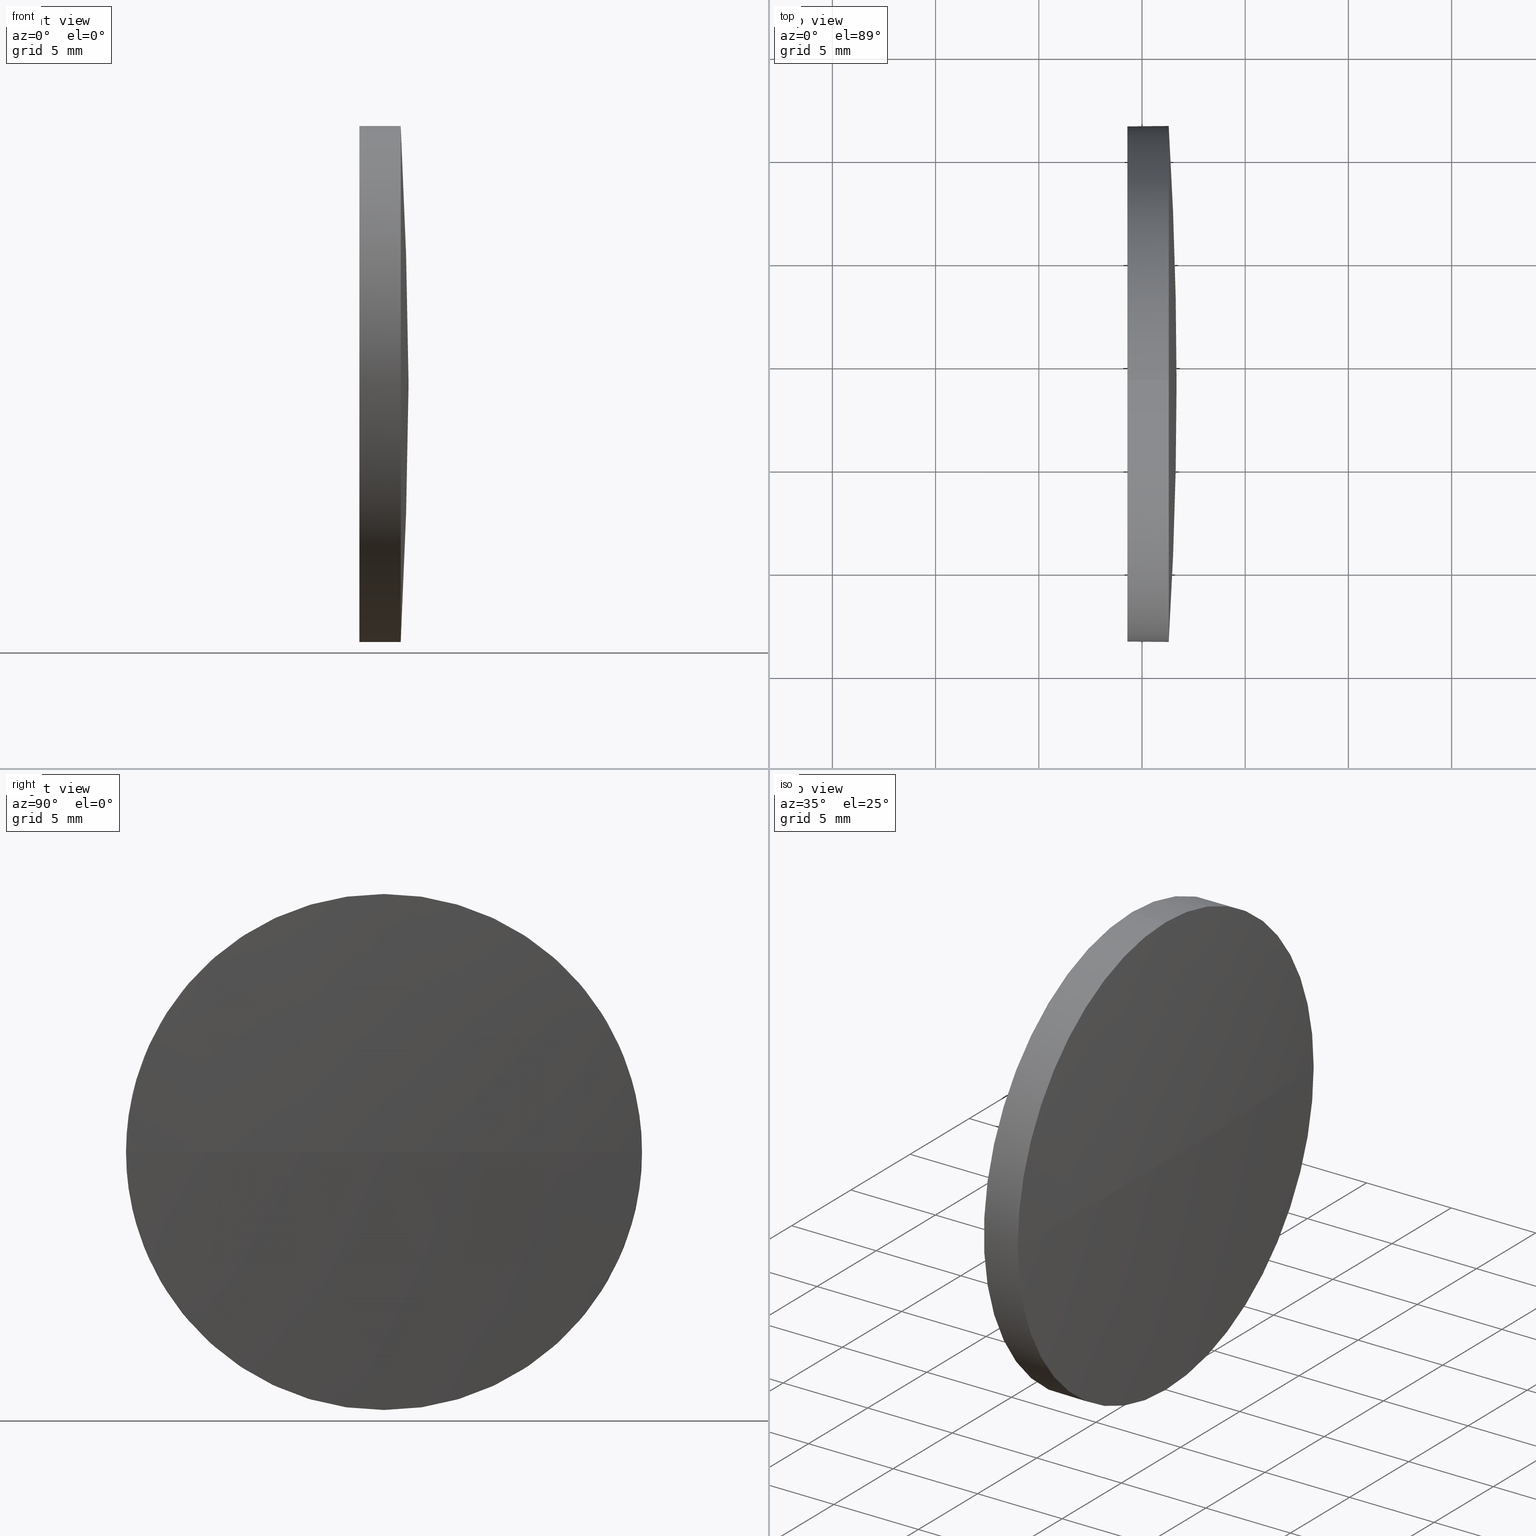
[diagram: canonical four-view strip — front | top / right | iso, engineering-drawing reading convention]
A machine part, canonical four-view strip (front | top / right | iso — engineering-drawing reading convention). The complete STEP part file that produces these views, byte-faithful:
ISO-10303-21;
HEADER;
FILE_DESCRIPTION (( 'STEP AP214' ),
    '1' );
FILE_NAME ('100136.STEP',
    '2019-05-15T03:12:38',
    ( '' ),
    ( '' ),
    'SwSTEP 2.0',
    'SolidWorks 2016',
    '' );
FILE_SCHEMA (( 'AUTOMOTIVE_DESIGN' ));
ENDSEC;

DATA;
#1 = CIRCLE ( 'NONE', #85, 205.7821052631565800 ) ;
#2 = AXIS2_PLACEMENT_3D ( 'NONE', #115, #129, #130 ) ;
#3 =( GEOMETRIC_REPRESENTATION_CONTEXT ( 3 ) GLOBAL_UNCERTAINTY_ASSIGNED_CONTEXT ( ( #110 ) ) GLOBAL_UNIT_ASSIGNED_CONTEXT ( ( #166, #107, #118 ) ) REPRESENTATION_CONTEXT ( 'NONE', 'WORKASPACE' ) );
#4 = ADVANCED_FACE ( 'NONE', ( #56 ), #18, .T. ) ;
#5 = CARTESIAN_POINT ( 'NONE',  ( 381.2946754497420400, 196.5413966464076100, -1.530808498934213600E-015 ) ) ;
#6 = DIRECTION ( 'NONE',  ( -0.0000000000000000000, 0.0000000000000000000, -1.000000000000000000 ) ) ;
#7 = DIRECTION ( 'NONE',  ( -1.000000000000000000, -0.0000000000000000000, -0.0000000000000000000 ) ) ;
#8 = VERTEX_POINT ( 'NONE', #5 ) ;
#9 = CARTESIAN_POINT ( 'NONE',  ( 376.9290595469810800, 209.0413966464078600, 12.50000000000001100 ) ) ;
#10 = DIRECTION ( 'NONE',  ( 0.0000000000000000000, 0.0000000000000000000, 1.000000000000000000 ) ) ;
#11 = AXIS2_PLACEMENT_3D ( 'NONE', #159, #157, #43 ) ;
#12 = ORIENTED_EDGE ( 'NONE', *, *, #167, .F. ) ;
#13 = DIRECTION ( 'NONE',  ( -1.000000000000000000, -0.0000000000000000000, -0.0000000000000000000 ) ) ;
#14 = CARTESIAN_POINT ( 'NONE',  ( 379.2946754497420400, 209.0413966464078600, 0.0000000000000000000 ) ) ;
#15 = PRESENTATION_LAYER_ASSIGNMENT (  '', '', ( #40 ) ) ;
#16 = SURFACE_STYLE_USAGE ( .BOTH. , #108 ) ;
#17 = CARTESIAN_POINT ( 'NONE',  ( 0.0000000000000000000, 0.0000000000000000000, 0.0000000000000000000 ) ) ;
#18 = SPHERICAL_SURFACE ( 'NONE', #160, 205.7821052631565500 ) ;
#19 = CARTESIAN_POINT ( 'NONE',  ( 381.2946754497420400, 209.0413966464078600, 0.0000000000000000000 ) ) ;
#20 = EDGE_CURVE ( 'NONE', #39, #29, #60, .T. ) ;
#21 = PRODUCT_CONTEXT ( 'NONE', #120, 'mechanical' ) ;
#22 = FACE_OUTER_BOUND ( 'NONE', #171, .T. ) ;
#23 = AXIS2_PLACEMENT_3D ( 'NONE', #31, #90, #139 ) ;
#24 = ORIENTED_EDGE ( 'NONE', *, *, #38, .F. ) ;
#25 = LINE ( 'NONE', #9, #170 ) ;
#26 = ORIENTED_EDGE ( 'NONE', *, *, #150, .T. ) ;
#27 = CARTESIAN_POINT ( 'NONE',  ( 381.6746754497421000, 209.0413966464077800, 0.0000000000000000000 ) ) ;
#28 = DIRECTION ( 'NONE',  ( 0.0000000000000000000, 0.0000000000000000000, 1.000000000000000000 ) ) ;
#29 = VERTEX_POINT ( 'NONE', #83 ) ;
#30 = ADVANCED_FACE ( 'NONE', ( #142 ), #147, .F. ) ;
#31 = CARTESIAN_POINT ( 'NONE',  ( 379.2946754497420400, 209.0413966464078600, 0.0000000000000000000 ) ) ;
#32 = ORIENTED_EDGE ( 'NONE', *, *, #167, .T. ) ;
#33 = PRODUCT_DEFINITION_CONTEXT ( 'detailed design', #104, 'design' ) ;
#34 = FILL_AREA_STYLE_COLOUR ( '', #92 ) ;
#35 =( GEOMETRIC_REPRESENTATION_CONTEXT ( 3 ) GLOBAL_UNCERTAINTY_ASSIGNED_CONTEXT ( ( #89 ) ) GLOBAL_UNIT_ASSIGNED_CONTEXT ( ( #77, #36, #73 ) ) REPRESENTATION_CONTEXT ( 'NONE', 'WORKASPACE' ) );
#36 =( NAMED_UNIT ( * ) PLANE_ANGLE_UNIT ( ) SI_UNIT ( $, .RADIAN. ) );
#37 = COLOUR_RGB ( '',1.000000000000000000, 1.000000000000000000, 1.000000000000000000 ) ;
#38 = EDGE_CURVE ( 'NONE', #68, #39, #162, .T. ) ;
#39 = VERTEX_POINT ( 'NONE', #49 ) ;
#40 = STYLED_ITEM ( 'NONE', ( #87 ), #47 ) ;
#41 = CIRCLE ( 'NONE', #23, 12.50000000000001100 ) ;
#42 = ADVANCED_FACE ( 'NONE', ( #67 ), #144, .T. ) ;
#43 = DIRECTION ( 'NONE',  ( 0.0000000000000000000, 0.0000000000000000000, 1.000000000000000000 ) ) ;
#44 =( GEOMETRIC_REPRESENTATION_CONTEXT ( 3 ) GLOBAL_UNCERTAINTY_ASSIGNED_CONTEXT ( ( #55 ) ) GLOBAL_UNIT_ASSIGNED_CONTEXT ( ( #180, #86, #183 ) ) REPRESENTATION_CONTEXT ( 'NONE', 'WORKASPACE' ) );
#45 = FACE_OUTER_BOUND ( 'NONE', #111, .T. ) ;
#46 = DIRECTION ( 'NONE',  ( -1.000000000000000000, -0.0000000000000000000, -0.0000000000000000000 ) ) ;
#47 = ADVANCED_BREP_SHAPE_REPRESENTATION ( '100136', ( #134, #79 ), #44 ) ;
#48 = AXIS2_PLACEMENT_3D ( 'NONE', #175, #114, #113 ) ;
#49 = CARTESIAN_POINT ( 'NONE',  ( 381.2946754497420400, 221.5413966464080300, 0.0000000000000000000 ) ) ;
#50 = DIRECTION ( 'NONE',  ( -0.0000000000000000000, 0.0000000000000000000, 1.000000000000000000 ) ) ;
#51 = DIRECTION ( 'NONE',  ( 1.000000000000000000, 0.0000000000000000000, 0.0000000000000000000 ) ) ;
#52 = DIRECTION ( 'NONE',  ( 0.0000000000000000000, 1.224646799147353200E-016, -1.000000000000000000 ) ) ;
#53 = SURFACE_STYLE_USAGE ( .BOTH. , #138 ) ;
#54 = DIRECTION ( 'NONE',  ( 1.000000000000000000, 0.0000000000000000000, 0.0000000000000000000 ) ) ;
#55 = UNCERTAINTY_MEASURE_WITH_UNIT (LENGTH_MEASURE( 1.000000000000000100E-005 ), #180, 'distance_accuracy_value', 'NONE');
#56 = FACE_OUTER_BOUND ( 'NONE', #70, .T. ) ;
#57 = VECTOR ( 'NONE', #7, 1000.000000000000000 ) ;
#58 = AXIS2_PLACEMENT_3D ( 'NONE', #81, #178, #82 ) ;
#59 = ORIENTED_EDGE ( 'NONE', *, *, #177, .T. ) ;
#60 = CIRCLE ( 'NONE', #2, 12.50000000000001100 ) ;
#61 = EDGE_LOOP ( 'NONE', ( #141, #95, #24, #136 ) ) ;
#62 = EDGE_CURVE ( 'NONE', #8, #68, #123, .T. ) ;
#63 = ORIENTED_EDGE ( 'NONE', *, *, #20, .F. ) ;
#64 = APPLICATION_PROTOCOL_DEFINITION ( 'draft international standard', 'automotive_design', 1998, #104 ) ;
#65 = DIRECTION ( 'NONE',  ( 0.0000000000000000000, 0.0000000000000000000, 1.000000000000000000 ) ) ;
#66 = PRESENTATION_STYLE_ASSIGNMENT (( #16 ) ) ;
#67 = FACE_OUTER_BOUND ( 'NONE', #61, .T. ) ;
#68 = VERTEX_POINT ( 'NONE', #71 ) ;
#69 = AXIS2_PLACEMENT_3D ( 'NONE', #164, #52, #154 ) ;
#70 = EDGE_LOOP ( 'NONE', ( #185, #156, #12, #63 ) ) ;
#71 = CARTESIAN_POINT ( 'NONE',  ( 381.2946754497420400, 209.0413966464078600, 12.50000000000001100 ) ) ;
#72 = SHAPE_DEFINITION_REPRESENTATION ( #124, #47 ) ;
#73 =( NAMED_UNIT ( * ) SI_UNIT ( $, .STERADIAN. ) SOLID_ANGLE_UNIT ( ) );
#74 = ORIENTED_EDGE ( 'NONE', *, *, #177, .F. ) ;
#75 = DIRECTION ( 'NONE',  ( -1.000000000000000000, -0.0000000000000000000, -0.0000000000000000000 ) ) ;
#76 = MECHANICAL_DESIGN_GEOMETRIC_PRESENTATION_REPRESENTATION (  '', ( #96 ), #35 ) ;
#77 =( LENGTH_UNIT ( ) NAMED_UNIT ( * ) SI_UNIT ( .MILLI., .METRE. ) );
#78 = EDGE_CURVE ( 'NONE', #109, #127, #101, .T. ) ;
#79 = AXIS2_PLACEMENT_3D ( 'NONE', #17, #135, #51 ) ;
#80 = CARTESIAN_POINT ( 'NONE',  ( 175.8925701865855200, 209.0413966464077800, 0.0000000000000000000 ) ) ;
#81 = CARTESIAN_POINT ( 'NONE',  ( 381.2946754497420400, 209.0413966464078600, 0.0000000000000000000 ) ) ;
#82 = DIRECTION ( 'NONE',  ( 0.0000000000000000000, 0.0000000000000000000, 1.000000000000000000 ) ) ;
#83 = CARTESIAN_POINT ( 'NONE',  ( 381.2946754497420400, 209.0413966464078600, -12.50000000000001100 ) ) ;
#84 = CARTESIAN_POINT ( 'NONE',  ( 376.9290595469810800, 209.0413966464078600, 0.0000000000000000000 ) ) ;
#85 = AXIS2_PLACEMENT_3D ( 'NONE', #152, #50, #54 ) ;
#86 =( NAMED_UNIT ( * ) PLANE_ANGLE_UNIT ( ) SI_UNIT ( $, .RADIAN. ) );
#87 = PRESENTATION_STYLE_ASSIGNMENT (( #53 ) ) ;
#88 = VERTEX_POINT ( 'NONE', #27 ) ;
#89 = UNCERTAINTY_MEASURE_WITH_UNIT (LENGTH_MEASURE( 1.000000000000000100E-005 ), #77, 'distance_accuracy_value', 'NONE');
#90 = DIRECTION ( 'NONE',  ( -1.000000000000000000, -0.0000000000000000000, -0.0000000000000000000 ) ) ;
#91 = PRODUCT_RELATED_PRODUCT_CATEGORY ( 'part', '', ( #181 ) ) ;
#92 = COLOUR_RGB ( '',1.000000000000000000, 1.000000000000000000, 1.000000000000000000 ) ;
#93 = ORIENTED_EDGE ( 'NONE', *, *, #62, .T. ) ;
#94 = CLOSED_SHELL ( 'NONE', ( #97, #4, #42, #143, #30 ) ) ;
#95 = ORIENTED_EDGE ( 'NONE', *, *, #126, .T. ) ;
#96 = STYLED_ITEM ( 'NONE', ( #66 ), #134 ) ;
#97 = ADVANCED_FACE ( 'NONE', ( #45 ), #149, .T. ) ;
#98 = SURFACE_STYLE_FILL_AREA ( #105 ) ;
#99 = CARTESIAN_POINT ( 'NONE',  ( 381.2946754497420400, 209.0413966464078600, 0.0000000000000000000 ) ) ;
#100 = CYLINDRICAL_SURFACE ( 'NONE', #174, 12.50000000000001100 ) ;
#101 = CIRCLE ( 'NONE', #186, 12.50000000000001100 ) ;
#102 = AXIS2_PLACEMENT_3D ( 'NONE', #80, #6, #103 ) ;
#103 = DIRECTION ( 'NONE',  ( 0.0000000000000000000, 1.000000000000000000, 0.0000000000000000000 ) ) ;
#104 = APPLICATION_CONTEXT ( 'automotive_design' ) ;
#105 = FILL_AREA_STYLE ('',( #34 ) ) ;
#106 = ORIENTED_EDGE ( 'NONE', *, *, #78, .F. ) ;
#107 =( NAMED_UNIT ( * ) PLANE_ANGLE_UNIT ( ) SI_UNIT ( $, .RADIAN. ) );
#108 = SURFACE_SIDE_STYLE ('',( #131 ) ) ;
#109 = VERTEX_POINT ( 'NONE', #121 ) ;
#110 = UNCERTAINTY_MEASURE_WITH_UNIT (LENGTH_MEASURE( 1.000000000000000100E-005 ), #166, 'distance_accuracy_value', 'NONE');
#111 = EDGE_LOOP ( 'NONE', ( #173, #26, #106, #74, #132 ) ) ;
#112 = MECHANICAL_DESIGN_GEOMETRIC_PRESENTATION_REPRESENTATION (  '', ( #40 ), #3 ) ;
#113 = DIRECTION ( 'NONE',  ( 0.0000000000000000000, 0.0000000000000000000, -1.000000000000000000 ) ) ;
#114 = DIRECTION ( 'NONE',  ( 1.000000000000000000, 0.0000000000000000000, 0.0000000000000000000 ) ) ;
#115 = CARTESIAN_POINT ( 'NONE',  ( 381.2946754497420400, 209.0413966464078600, 0.0000000000000000000 ) ) ;
#116 = FILL_AREA_STYLE ('',( #184 ) ) ;
#117 = PRESENTATION_LAYER_ASSIGNMENT (  '', '', ( #96 ) ) ;
#118 =( NAMED_UNIT ( * ) SI_UNIT ( $, .STERADIAN. ) SOLID_ANGLE_UNIT ( ) );
#119 = EDGE_CURVE ( 'NONE', #127, #109, #41, .T. ) ;
#120 = APPLICATION_CONTEXT ( 'automotive_design' ) ;
#121 = CARTESIAN_POINT ( 'NONE',  ( 379.2946754497420400, 209.0413966464078600, 12.50000000000001100 ) ) ;
#122 = EDGE_CURVE ( 'NONE', #88, #8, #155, .T. ) ;
#123 = CIRCLE ( 'NONE', #172, 12.50000000000001100 ) ;
#124 = PRODUCT_DEFINITION_SHAPE ( 'NONE', 'NONE',  #125 ) ;
#125 = PRODUCT_DEFINITION ( 'δ֪', '', #137, #33 ) ;
#126 = EDGE_CURVE ( 'NONE', #88, #39, #1, .T. ) ;
#127 = VERTEX_POINT ( 'NONE', #163 ) ;
#128 = EDGE_LOOP ( 'NONE', ( #169, #168 ) ) ;
#129 = DIRECTION ( 'NONE',  ( -1.000000000000000000, -0.0000000000000000000, -0.0000000000000000000 ) ) ;
#130 = DIRECTION ( 'NONE',  ( 0.0000000000000000000, 0.0000000000000000000, 1.000000000000000000 ) ) ;
#131 = SURFACE_STYLE_FILL_AREA ( #116 ) ;
#132 = ORIENTED_EDGE ( 'NONE', *, *, #38, .T. ) ;
#133 = DIRECTION ( 'NONE',  ( -1.000000000000000000, -0.0000000000000000000, -0.0000000000000000000 ) ) ;
#134 = MANIFOLD_SOLID_BREP ( '��ת1', #94 ) ;
#135 = DIRECTION ( 'NONE',  ( 0.0000000000000000000, 0.0000000000000000000, 1.000000000000000000 ) ) ;
#136 = ORIENTED_EDGE ( 'NONE', *, *, #62, .F. ) ;
#137 = PRODUCT_DEFINITION_FORMATION_WITH_SPECIFIED_SOURCE ( '�κ�', '', #181, .NOT_KNOWN. ) ;
#138 = SURFACE_SIDE_STYLE ('',( #98 ) ) ;
#139 = DIRECTION ( 'NONE',  ( 0.0000000000000000000, 0.0000000000000000000, 1.000000000000000000 ) ) ;
#140 = ORIENTED_EDGE ( 'NONE', *, *, #119, .F. ) ;
#141 = ORIENTED_EDGE ( 'NONE', *, *, #122, .F. ) ;
#142 = FACE_OUTER_BOUND ( 'NONE', #128, .T. ) ;
#143 = ADVANCED_FACE ( 'NONE', ( #22 ), #100, .T. ) ;
#144 = SPHERICAL_SURFACE ( 'NONE', #102, 205.7821052631565500 ) ;
#145 = CARTESIAN_POINT ( 'NONE',  ( 175.8925701865855200, 209.0413966464077800, 0.0000000000000000000 ) ) ;
#146 = DIRECTION ( 'NONE',  ( 0.0000000000000000000, 0.0000000000000000000, 1.000000000000000000 ) ) ;
#147 = PLANE ( 'NONE',  #48 ) ;
#148 = DIRECTION ( 'NONE',  ( -1.000000000000000000, -0.0000000000000000000, -0.0000000000000000000 ) ) ;
#149 = CYLINDRICAL_SURFACE ( 'NONE', #11, 12.50000000000001100 ) ;
#150 = EDGE_CURVE ( 'NONE', #29, #127, #165, .T. ) ;
#151 = ORIENTED_EDGE ( 'NONE', *, *, #150, .F. ) ;
#152 = CARTESIAN_POINT ( 'NONE',  ( 175.8925701865855200, 209.0413966464077800, 0.0000000000000000000 ) ) ;
#153 = APPLICATION_PROTOCOL_DEFINITION ( 'draft international standard', 'automotive_design', 1998, #120 ) ;
#154 = DIRECTION ( 'NONE',  ( 0.0000000000000000000, 1.000000000000000000, 1.224646799147353500E-016 ) ) ;
#155 = CIRCLE ( 'NONE', #69, 205.7821052631565200 ) ;
#156 = ORIENTED_EDGE ( 'NONE', *, *, #122, .T. ) ;
#157 = DIRECTION ( 'NONE',  ( -1.000000000000000000, -0.0000000000000000000, -0.0000000000000000000 ) ) ;
#158 = DIRECTION ( 'NONE',  ( 0.0000000000000000000, 1.000000000000000000, 0.0000000000000000000 ) ) ;
#159 = CARTESIAN_POINT ( 'NONE',  ( 376.9290595469810800, 209.0413966464078600, 0.0000000000000000000 ) ) ;
#160 = AXIS2_PLACEMENT_3D ( 'NONE', #145, #176, #158 ) ;
#161 = CARTESIAN_POINT ( 'NONE',  ( 376.9290595469810800, 209.0413966464078600, -12.50000000000001100 ) ) ;
#162 = CIRCLE ( 'NONE', #58, 12.50000000000001100 ) ;
#163 = CARTESIAN_POINT ( 'NONE',  ( 379.2946754497420400, 209.0413966464078600, -12.50000000000001100 ) ) ;
#164 = CARTESIAN_POINT ( 'NONE',  ( 175.8925701865855200, 209.0413966464077800, 0.0000000000000000000 ) ) ;
#165 = LINE ( 'NONE', #161, #57 ) ;
#166 =( LENGTH_UNIT ( ) NAMED_UNIT ( * ) SI_UNIT ( .MILLI., .METRE. ) );
#167 = EDGE_CURVE ( 'NONE', #29, #8, #182, .T. ) ;
#168 = ORIENTED_EDGE ( 'NONE', *, *, #119, .T. ) ;
#169 = ORIENTED_EDGE ( 'NONE', *, *, #78, .T. ) ;
#170 = VECTOR ( 'NONE', #148, 1000.000000000000000 ) ;
#171 = EDGE_LOOP ( 'NONE', ( #151, #32, #93, #59, #140 ) ) ;
#172 = AXIS2_PLACEMENT_3D ( 'NONE', #99, #13, #28 ) ;
#173 = ORIENTED_EDGE ( 'NONE', *, *, #20, .T. ) ;
#174 = AXIS2_PLACEMENT_3D ( 'NONE', #84, #75, #10 ) ;
#175 = CARTESIAN_POINT ( 'NONE',  ( 379.2946754497420400, 209.0413966464078600, 0.0000000000000000000 ) ) ;
#176 = DIRECTION ( 'NONE',  ( -0.0000000000000000000, 0.0000000000000000000, -1.000000000000000000 ) ) ;
#177 = EDGE_CURVE ( 'NONE', #68, #109, #25, .T. ) ;
#178 = DIRECTION ( 'NONE',  ( -1.000000000000000000, -0.0000000000000000000, -0.0000000000000000000 ) ) ;
#179 = AXIS2_PLACEMENT_3D ( 'NONE', #19, #133, #65 ) ;
#180 =( LENGTH_UNIT ( ) NAMED_UNIT ( * ) SI_UNIT ( .MILLI., .METRE. ) );
#181 = PRODUCT ( '100136', '100136', '', ( #21 ) ) ;
#182 = CIRCLE ( 'NONE', #179, 12.50000000000001100 ) ;
#183 =( NAMED_UNIT ( * ) SI_UNIT ( $, .STERADIAN. ) SOLID_ANGLE_UNIT ( ) );
#184 = FILL_AREA_STYLE_COLOUR ( '', #37 ) ;
#185 = ORIENTED_EDGE ( 'NONE', *, *, #126, .F. ) ;
#186 = AXIS2_PLACEMENT_3D ( 'NONE', #14, #46, #146 ) ;
ENDSEC;
END-ISO-10303-21;
